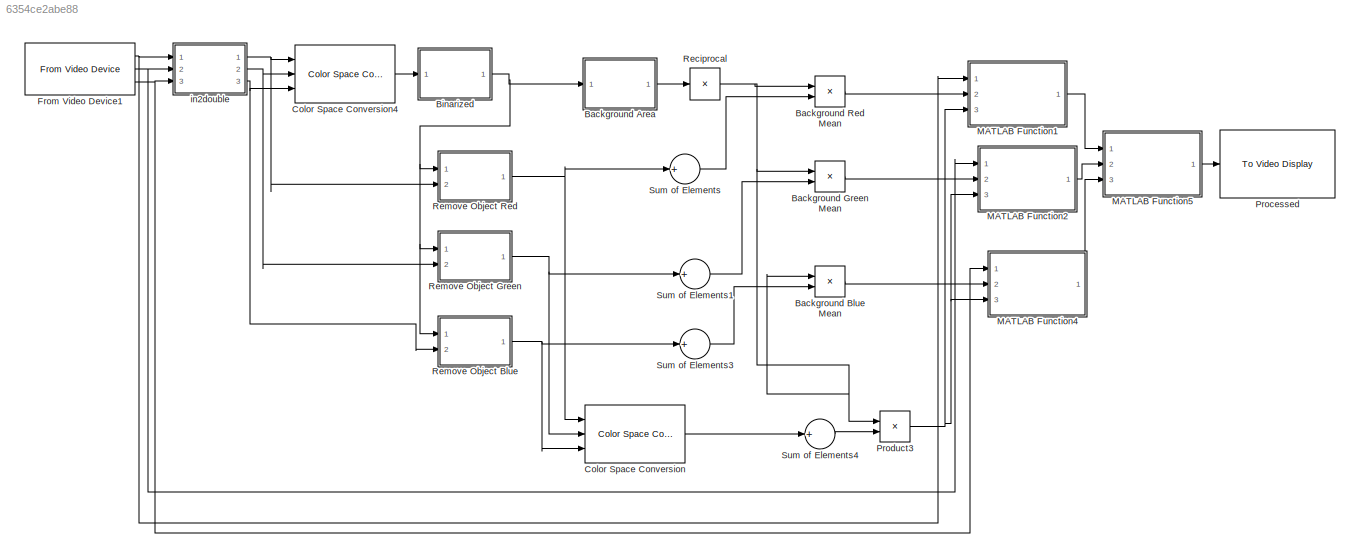
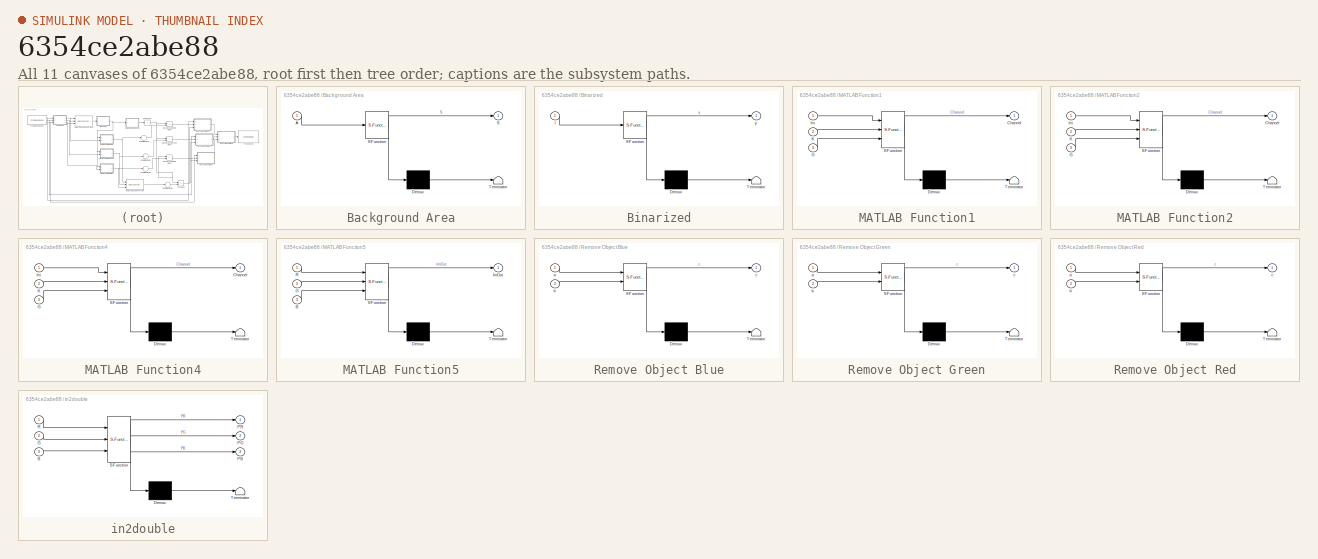
[diagram: thumbnail index - all 11 canvases of the model, root first then tree order]
MODEL slx_6354ce2abe88
KIND model
CONFIG AbsTol = auto
CONFIG FixedStep = auto
CONFIG MaxStep = auto
CONFIG MinStep = auto
CONFIG RelTol = 1e-3
CONFIG SampleTimeConstraint = Unconstrained
CONFIG Solver = VariableStepAuto
CONFIG SolverMode = Auto
CONFIG SolverName = VariableStepAuto
CONFIG StartTime = 0.0
CONFIG StopTime = inf
BLOCK [SubSystem] Background Area
  ErrorFcn = Stateflow.Translate.translate
  PermitHierarchicalResolution = ExplicitOnly
  Ports = [1, 1]
  RequestExecContextInheritance = off
  SFBlockType = MATLAB Function
  TreatAsAtomicUnit = on
  Variant = off
BLOCK [Demux] Background Area/ Demux 
  Outputs = 1
  Ports = [1, 1]
BLOCK [S-Function] Background Area/ SFunction 
  EnableBusSupport = on
  FunctionName = sf_sfun
  PortCounts = [1 2]
  Ports = [1, 2]
  SFunctionDeploymentMode = off
  Tag = Stateflow S-Function WhiteBlancing_using_Intensity_Values_of_Background 3
BLOCK [Terminator] Background Area/ Terminator 
BLOCK [Inport] Background Area/A
  IconDisplay = Port number
BLOCK [Outport] Background Area/S
  IconDisplay = Port number
BLOCK [Product] Background Blue Mean
  InputSameDT = off
  OutDataTypeStr = uint8
  Ports = [2, 1]
  RndMeth = Floor
  SaturateOnIntegerOverflow = off
BLOCK [Product] Background Green Mean
  InputSameDT = off
  OutDataTypeStr = uint8
  Ports = [2, 1]
  RndMeth = Floor
  SaturateOnIntegerOverflow = off
BLOCK [Product] Background Red Mean
  InputSameDT = off
  OutDataTypeStr = uint8
  Ports = [2, 1]
  RndMeth = Floor
  SaturateOnIntegerOverflow = off
BLOCK [SubSystem] Binarized
  ErrorFcn = Stateflow.Translate.translate
  PermitHierarchicalResolution = ExplicitOnly
  Ports = [1, 1]
  RequestExecContextInheritance = off
  SFBlockType = MATLAB Function
  TreatAsAtomicUnit = on
  Variant = off
BLOCK [Demux] Binarized/ Demux 
  Outputs = 1
  Ports = [1, 1]
BLOCK [S-Function] Binarized/ SFunction 
  EnableBusSupport = on
  FunctionName = sf_sfun
  PortCounts = [1 2]
  Ports = [1, 2]
  SFunctionDeploymentMode = off
  Tag = Stateflow S-Function WhiteBlancing_using_Intensity_Values_of_Background 14
BLOCK [Terminator] Binarized/ Terminator 
BLOCK [Inport] Binarized/I
  IconDisplay = Port number
BLOCK [Outport] Binarized/y
  IconDisplay = Port number
BLOCK [Reference] Color Space Conversion  REF=visionconversions/Color Space
 Conversion
  Ports = [3, 1]
  SourceBlock = visionconversions/Color Space\n Conversion
  SourceType = Color Space Conversion
BLOCK [Reference] Color Space Conversion4  REF=visionconversions/Color Space
 Conversion
  Ports = [3, 1]
  SourceBlock = visionconversions/Color Space\n Conversion
  SourceType = Color Space Conversion
BLOCK [Reference] From Video Device1  REF=imaqlib/From Video Device
  Ports = [0, 3]
  SourceBlock = imaqlib/From Video Device
  SourceType = From Video Device
  UserDataPersistent = on
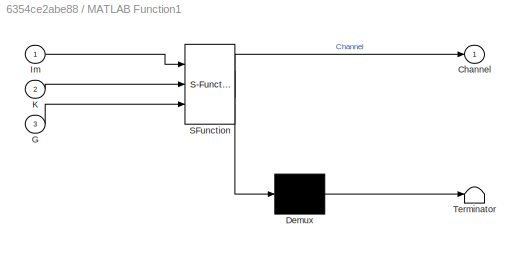
BLOCK [SubSystem] MATLAB Function1
  ErrorFcn = Stateflow.Translate.translate
  PermitHierarchicalResolution = ExplicitOnly
  Ports = [3, 1]
  RequestExecContextInheritance = off
  SFBlockType = MATLAB Function
  TreatAsAtomicUnit = on
  Variant = off
BLOCK [Demux] MATLAB Function1/ Demux 
  Outputs = 1
  Ports = [1, 1]
BLOCK [S-Function] MATLAB Function1/ SFunction 
  EnableBusSupport = on
  FunctionName = sf_sfun
  PortCounts = [3 2]
  Ports = [3, 2]
  SFunctionDeploymentMode = off
  Tag = Stateflow S-Function WhiteBlancing_using_Intensity_Values_of_Background 1
BLOCK [Terminator] MATLAB Function1/ Terminator 
BLOCK [Outport] MATLAB Function1/Channel
  IconDisplay = Port number
BLOCK [Inport] MATLAB Function1/G
  IconDisplay = Port number
  Port = 3
BLOCK [Inport] MATLAB Function1/Im
  IconDisplay = Port number
BLOCK [Inport] MATLAB Function1/K
  IconDisplay = Port number
  Port = 2
BLOCK [SubSystem] MATLAB Function2
  ErrorFcn = Stateflow.Translate.translate
  PermitHierarchicalResolution = ExplicitOnly
  Ports = [3, 1]
  RequestExecContextInheritance = off
  SFBlockType = MATLAB Function
  TreatAsAtomicUnit = on
  Variant = off
BLOCK [Demux] MATLAB Function2/ Demux 
  Outputs = 1
  Ports = [1, 1]
BLOCK [S-Function] MATLAB Function2/ SFunction 
  EnableBusSupport = on
  FunctionName = sf_sfun
  PortCounts = [3 2]
  Ports = [3, 2]
  SFunctionDeploymentMode = off
  Tag = Stateflow S-Function WhiteBlancing_using_Intensity_Values_of_Background 2
BLOCK [Terminator] MATLAB Function2/ Terminator 
BLOCK [Outport] MATLAB Function2/Channel
  IconDisplay = Port number
BLOCK [Inport] MATLAB Function2/G
  IconDisplay = Port number
  Port = 3
BLOCK [Inport] MATLAB Function2/Im
  IconDisplay = Port number
BLOCK [Inport] MATLAB Function2/K
  IconDisplay = Port number
  Port = 2
BLOCK [SubSystem] MATLAB Function4
  ErrorFcn = Stateflow.Translate.translate
  PermitHierarchicalResolution = ExplicitOnly
  Ports = [3, 1]
  RequestExecContextInheritance = off
  SFBlockType = MATLAB Function
  TreatAsAtomicUnit = on
  Variant = off
BLOCK [Demux] MATLAB Function4/ Demux 
  Outputs = 1
  Ports = [1, 1]
BLOCK [S-Function] MATLAB Function4/ SFunction 
  EnableBusSupport = on
  FunctionName = sf_sfun
  PortCounts = [3 2]
  Ports = [3, 2]
  SFunctionDeploymentMode = off
  Tag = Stateflow S-Function WhiteBlancing_using_Intensity_Values_of_Background 4
BLOCK [Terminator] MATLAB Function4/ Terminator 
BLOCK [Outport] MATLAB Function4/Channel
  IconDisplay = Port number
BLOCK [Inport] MATLAB Function4/G
  IconDisplay = Port number
  Port = 3
BLOCK [Inport] MATLAB Function4/Im
  IconDisplay = Port number
BLOCK [Inport] MATLAB Function4/K
  IconDisplay = Port number
  Port = 2
BLOCK [SubSystem] MATLAB Function5
  ErrorFcn = Stateflow.Translate.translate
  PermitHierarchicalResolution = ExplicitOnly
  Ports = [3, 1]
  RequestExecContextInheritance = off
  SFBlockType = MATLAB Function
  TreatAsAtomicUnit = on
  Variant = off
BLOCK [Demux] MATLAB Function5/ Demux 
  Outputs = 1
  Ports = [1, 1]
BLOCK [S-Function] MATLAB Function5/ SFunction 
  EnableBusSupport = on
  FunctionName = sf_sfun
  PortCounts = [3 2]
  Ports = [3, 2]
  SFunctionDeploymentMode = off
  Tag = Stateflow S-Function WhiteBlancing_using_Intensity_Values_of_Background 5
BLOCK [Terminator] MATLAB Function5/ Terminator 
BLOCK [Inport] MATLAB Function5/B
  IconDisplay = Port number
  Port = 3
BLOCK [Inport] MATLAB Function5/G
  IconDisplay = Port number
  Port = 2
BLOCK [Outport] MATLAB Function5/ImOut
  IconDisplay = Port number
BLOCK [Inport] MATLAB Function5/R
  IconDisplay = Port number
BLOCK [Reference] Processed  REF=visionsinks/To Video Display
  Ports = [1]
  SourceBlock = visionsinks/To Video Display
  SourceType = To Video Display
BLOCK [Product] Product3
  InputSameDT = off
  OutDataTypeStr = uint8
  Ports = [2, 1]
  RndMeth = Floor
  SaturateOnIntegerOverflow = off
BLOCK [Product] Reciprocal
  InputSameDT = off
  Inputs = /
  OutDataTypeStr = double
  Ports = [1, 1]
BLOCK [SubSystem] Remove Object Blue
  ErrorFcn = Stateflow.Translate.translate
  PermitHierarchicalResolution = ExplicitOnly
  Ports = [2, 1]
  RequestExecContextInheritance = off
  SFBlockType = MATLAB Function
  TreatAsAtomicUnit = on
  Variant = off
BLOCK [Demux] Remove Object Blue/ Demux 
  Outputs = 1
  Ports = [1, 1]
BLOCK [S-Function] Remove Object Blue/ SFunction 
  EnableBusSupport = on
  FunctionName = sf_sfun
  PortCounts = [2 2]
  Ports = [2, 2]
  SFunctionDeploymentMode = off
  Tag = Stateflow S-Function WhiteBlancing_using_Intensity_Values_of_Background 15
BLOCK [Terminator] Remove Object Blue/ Terminator 
BLOCK [Inport] Remove Object Blue/a
  IconDisplay = Port number
BLOCK [Inport] Remove Object Blue/b
  IconDisplay = Port number
  Port = 2
BLOCK [Outport] Remove Object Blue/c
  IconDisplay = Port number
BLOCK [SubSystem] Remove Object Green
  ErrorFcn = Stateflow.Translate.translate
  PermitHierarchicalResolution = ExplicitOnly
  Ports = [2, 1]
  RequestExecContextInheritance = off
  SFBlockType = MATLAB Function
  TreatAsAtomicUnit = on
  Variant = off
BLOCK [Demux] Remove Object Green/ Demux 
  Outputs = 1
  Ports = [1, 1]
BLOCK [S-Function] Remove Object Green/ SFunction 
  EnableBusSupport = on
  FunctionName = sf_sfun
  PortCounts = [2 2]
  Ports = [2, 2]
  SFunctionDeploymentMode = off
  Tag = Stateflow S-Function WhiteBlancing_using_Intensity_Values_of_Background 10
BLOCK [Terminator] Remove Object Green/ Terminator 
BLOCK [Inport] Remove Object Green/a
  IconDisplay = Port number
BLOCK [Inport] Remove Object Green/b
  IconDisplay = Port number
  Port = 2
BLOCK [Outport] Remove Object Green/c
  IconDisplay = Port number
BLOCK [SubSystem] Remove Object Red
  ErrorFcn = Stateflow.Translate.translate
  PermitHierarchicalResolution = ExplicitOnly
  Ports = [2, 1]
  RequestExecContextInheritance = off
  SFBlockType = MATLAB Function
  TreatAsAtomicUnit = on
  Variant = off
BLOCK [Demux] Remove Object Red/ Demux 
  Outputs = 1
  Ports = [1, 1]
BLOCK [S-Function] Remove Object Red/ SFunction 
  EnableBusSupport = on
  FunctionName = sf_sfun
  PortCounts = [2 2]
  Ports = [2, 2]
  SFunctionDeploymentMode = off
  Tag = Stateflow S-Function WhiteBlancing_using_Intensity_Values_of_Background 16
BLOCK [Terminator] Remove Object Red/ Terminator 
BLOCK [Inport] Remove Object Red/a
  IconDisplay = Port number
BLOCK [Inport] Remove Object Red/b
  IconDisplay = Port number
  Port = 2
BLOCK [Outport] Remove Object Red/c
  IconDisplay = Port number
BLOCK [Sum] Sum of Elements
  InputSameDT = off
  Inputs = +
  OutDataTypeStr = Inherit: Inherit via internal rule
  Ports = [1, 1]
  SaturateOnIntegerOverflow = off
BLOCK [Sum] Sum of Elements1
  InputSameDT = off
  Inputs = +
  OutDataTypeStr = Inherit: Inherit via internal rule
  Ports = [1, 1]
  SaturateOnIntegerOverflow = off
BLOCK [Sum] Sum of Elements3
  InputSameDT = off
  Inputs = +
  OutDataTypeStr = Inherit: Inherit via internal rule
  Ports = [1, 1]
  SaturateOnIntegerOverflow = off
BLOCK [Sum] Sum of Elements4
  InputSameDT = off
  Inputs = +
  OutDataTypeStr = Inherit: Inherit via internal rule
  Ports = [1, 1]
  SaturateOnIntegerOverflow = off
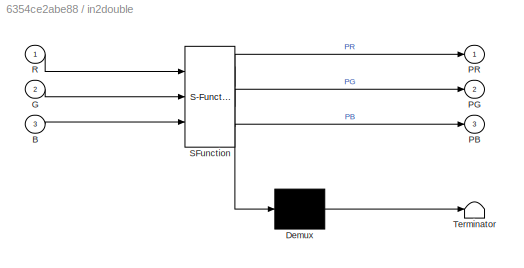
BLOCK [SubSystem] in2double
  ErrorFcn = Stateflow.Translate.translate
  PermitHierarchicalResolution = ExplicitOnly
  Ports = [3, 3]
  RequestExecContextInheritance = off
  SFBlockType = MATLAB Function
  TreatAsAtomicUnit = on
  Variant = off
BLOCK [Demux] in2double/ Demux 
  Outputs = 1
  Ports = [1, 1]
BLOCK [S-Function] in2double/ SFunction 
  EnableBusSupport = on
  FunctionName = sf_sfun
  PortCounts = [3 4]
  Ports = [3, 4]
  SFunctionDeploymentMode = off
  Tag = Stateflow S-Function WhiteBlancing_using_Intensity_Values_of_Background 7
BLOCK [Terminator] in2double/ Terminator 
BLOCK [Inport] in2double/B
  IconDisplay = Port number
  Port = 3
BLOCK [Inport] in2double/G
  IconDisplay = Port number
  Port = 2
BLOCK [Outport] in2double/PB
  IconDisplay = Port number
  Port = 3
BLOCK [Outport] in2double/PG
  IconDisplay = Port number
  Port = 2
BLOCK [Outport] in2double/PR
  IconDisplay = Port number
BLOCK [Inport] in2double/R
  IconDisplay = Port number
LINE Background Area:1 -> Reciprocal:1
LINE Background Blue Mean:1 -> MATLAB Function4:2
LINE Background Green Mean:1 -> MATLAB Function2:2
LINE Background Red Mean:1 -> MATLAB Function1:2
NET Binarized:1 -> Background Area:1, Remove Object Blue:1, Remove Object Green:1, Remove Object Red:1
LINE Color Space Conversion4:1 -> Binarized:1
LINE Color Space Conversion:1 -> Sum of Elements4:1
NET From Video Device1:1 -> MATLAB Function1:1, in2double:1
NET From Video Device1:2 -> MATLAB Function2:1, in2double:2
NET From Video Device1:3 -> MATLAB Function4:1, in2double:3
LINE MATLAB Function1:1 -> MATLAB Function5:1
LINE MATLAB Function2:1 -> MATLAB Function5:2
LINE MATLAB Function4:1 -> MATLAB Function5:3
LINE MATLAB Function5:1 -> Processed:1
NET Product3:1 -> MATLAB Function1:3, MATLAB Function2:3, MATLAB Function4:3
NET Reciprocal:1 -> Background Blue Mean:1, Background Green Mean:1, Background Red Mean:1, Product3:1
NET Remove Object Blue:1 -> Color Space Conversion:3, Sum of Elements3:1
NET Remove Object Green:1 -> Color Space Conversion:2, Sum of Elements1:1
NET Remove Object Red:1 -> Color Space Conversion:1, Sum of Elements:1
LINE Sum of Elements1:1 -> Background Green Mean:2
LINE Sum of Elements3:1 -> Background Blue Mean:2
LINE Sum of Elements4:1 -> Product3:2
LINE Sum of Elements:1 -> Background Red Mean:2
NET in2double:1 -> Color Space Conversion4:1, Remove Object Red:2
NET in2double:2 -> Color Space Conversion4:2, Remove Object Green:2
NET in2double:3 -> Color Space Conversion4:3, Remove Object Blue:2
note: NET lines group one-source signal fan-out (src -> all destinations, sorted); 1:1 wires keep LINE
CHART MATLAB Function1 states=1 transitions=1
  STATE_LABEL 'eML_blk_kernel()'
  STATE_LABEL 'SCRIPT:\nfunction Channel = fcn(Im,K,G)\nChannel = uint8(double(Im) *double(G)/double(K));\nreturn'
CHART MATLAB Function2 states=1 transitions=1
  STATE_LABEL 'eML_blk_kernel()'
  STATE_LABEL 'SCRIPT:\nfunction Channel = fcn(Im,K,G)\nChannel = uint8(double(Im) *double(G)/double(K));\nreturn'
CHART Background Area states=1 transitions=1
  STATE_LABEL 'eML_blk_kernel()'
  STATE_LABEL 'SCRIPT:\nfunction S = fcn(A)\n%#codegen\nS = sum(A(:))/100;'
CHART MATLAB Function4 states=1 transitions=1
  STATE_LABEL 'eML_blk_kernel()'
  STATE_LABEL 'SCRIPT:\nfunction Channel = fcn(Im,K,G)\nChannel = uint8(double(Im) *double(G)/double(K));\nreturn'
CHART MATLAB Function5 states=1 transitions=1
  STATE_LABEL 'eML_blk_kernel()'
  STATE_LABEL 'SCRIPT:\nfunction ImOut = fcn(R,G,B)\nImOut = cat(3, R, G, B);\nreturn'
CHART in2double states=1 transitions=1
  STATE_LABEL 'eML_blk_kernel()'
  STATE_LABEL 'SCRIPT:\nfunction [PR,PG,PB] = fcn(R,G,B)\n%#codegen\nIm=cat(3,R,G,B);\nPR= im2double(R);\nPG= im2double(G);\nPB= im2double(B);\nreturn'
CHART Remove Object Green states=1 transitions=1
  STATE_LABEL 'eML_blk_kernel()'
  STATE_LABEL 'SCRIPT:\nfunction c = fcn(a,b)\n%#codegen\nc=a.*b;\nreturn'
CHART Binarized states=1 transitions=1
  STATE_LABEL 'eML_blk_kernel()'
  STATE_LABEL "SCRIPT:\nfunction y = fcn(I)\n%#codegen\ny=logical(I);\ncoder.extrinsic('graythresh');\nlevel = graythresh(I);\nBW = im2bw(I,level);"
CHART Remove Object Blue states=1 transitions=1
  STATE_LABEL 'eML_blk_kernel()'
  STATE_LABEL 'SCRIPT:\nfunction c = fcn(a,b)\n%#codegen\nc=a.*b;\nreturn'
CHART Remove Object Red states=1 transitions=1
  STATE_LABEL 'eML_blk_kernel()'
  STATE_LABEL 'SCRIPT:\nfunction c = fcn(a,b)\n%#codegen\nc=a.*b;\nreturn'
